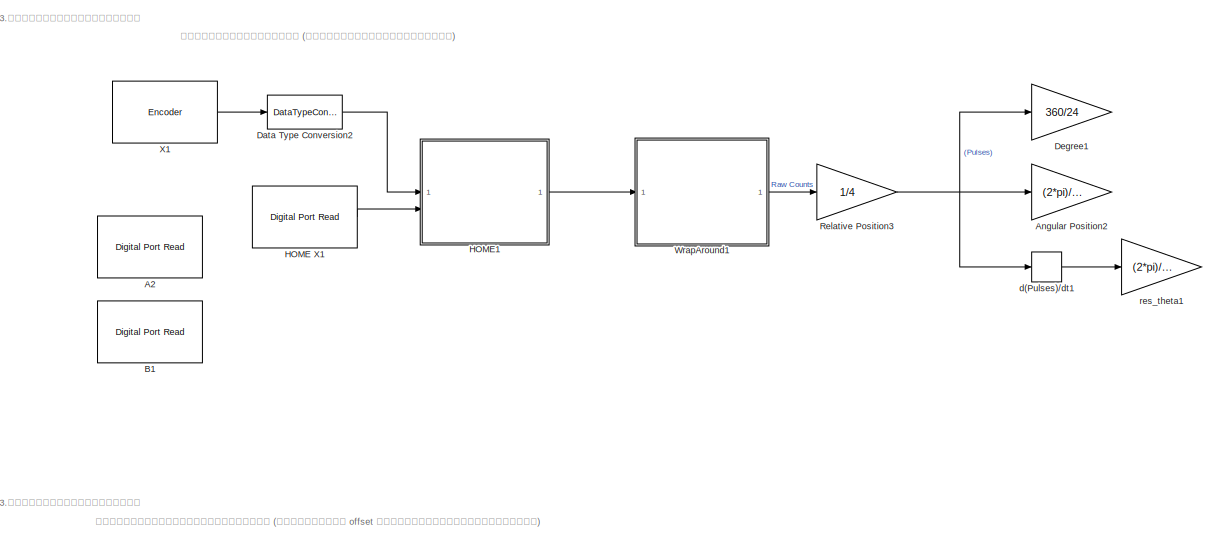
[diagram: root canvas - part 1/3, full width, top band]
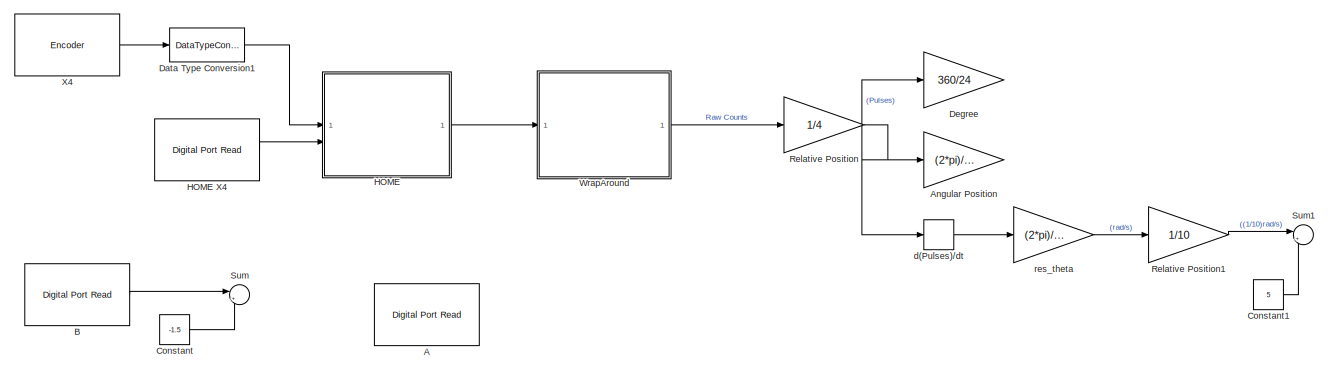
[diagram: root canvas - part 2/3, full width, middle band]
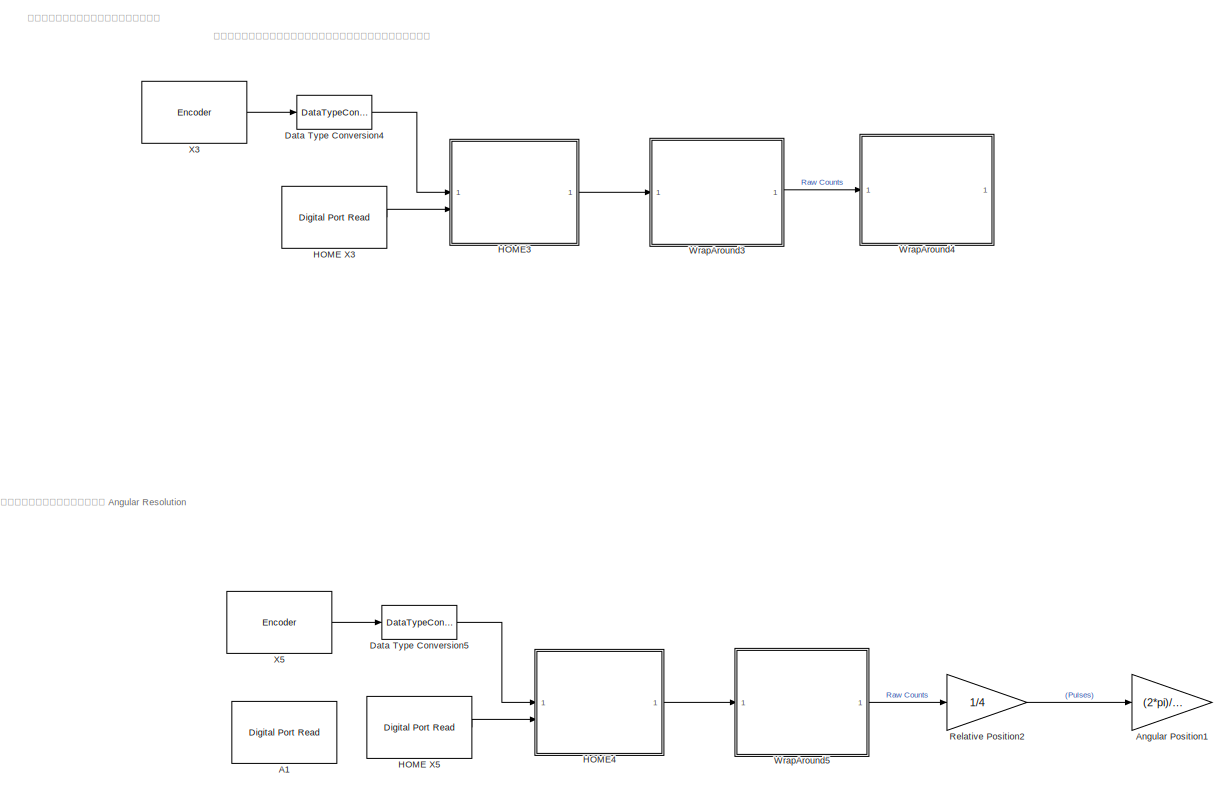
[diagram: root canvas - part 3/3, full width, bottom band]
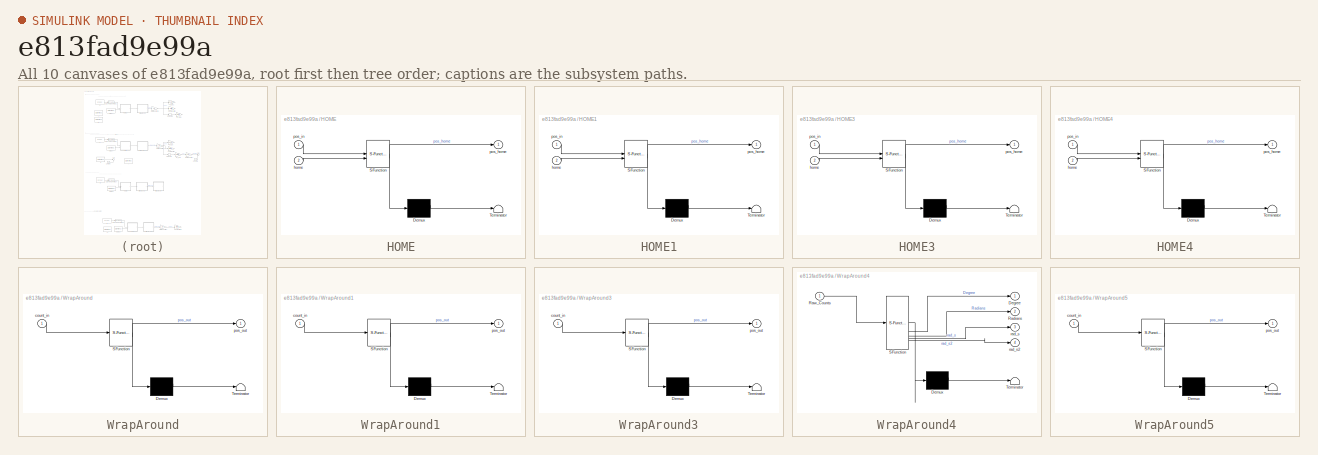
[diagram: thumbnail index - all 10 canvases of the model, root first then tree order]
MODEL slx_e813fad9e99a
KIND model
CONFIG AbsTol = auto
CONFIG EnableMultiTasking = on
CONFIG FixedStep = 0.1
CONFIG MaxStep = auto
CONFIG MinStep = auto
CONFIG RelTol = 1e-3
CONFIG SampleTimeConstraint = Unconstrained
CONFIG SolverName = FixedStepAuto
CONFIG StartTime = 0.0
CONFIG StopTime = inf
BLOCK [Reference] A  REF=stm32f4xxblockslib/Digital Port Read
  Commented = on
  LibrarySourceBlock = stm32g4xxblockslib/Digital Port Read
  SourceBlock = stm32f4xxblockslib/Digital Port Read
  SourceType = stm32cube.blocks.DigitalPortRead
BLOCK [Reference] A1  REF=stm32f4xxblockslib/Digital Port Read
  Commented = on
  LibrarySourceBlock = stm32g4xxblockslib/Digital Port Read
  SourceBlock = stm32f4xxblockslib/Digital Port Read
  SourceType = stm32cube.blocks.DigitalPortRead
BLOCK [Reference] A2  REF=stm32f4xxblockslib/Digital Port Read
  Commented = on
  LibrarySourceBlock = stm32g4xxblockslib/Digital Port Read
  SourceBlock = stm32f4xxblockslib/Digital Port Read
  SourceType = stm32cube.blocks.DigitalPortRead
BLOCK [Gain] Angular Position
  Commented = on
  Gain = (2*pi)/24
BLOCK [Gain] Angular Position1
  Commented = on
  Gain = (2*pi)/24
BLOCK [Gain] Angular Position2
  Commented = on
  Gain = (2*pi)/24
BLOCK [Reference] B  REF=stm32f4xxblockslib/Digital Port Read
  Commented = on
  LibrarySourceBlock = stm32g4xxblockslib/Digital Port Read
  SourceBlock = stm32f4xxblockslib/Digital Port Read
  SourceType = stm32cube.blocks.DigitalPortRead
BLOCK [Reference] B1  REF=stm32f4xxblockslib/Digital Port Read
  Commented = on
  LibrarySourceBlock = stm32g4xxblockslib/Digital Port Read
  SourceBlock = stm32f4xxblockslib/Digital Port Read
  SourceType = stm32cube.blocks.DigitalPortRead
BLOCK [Constant] Constant
  Commented = on
  Value = -1.5
BLOCK [Constant] Constant1
  Commented = on
  Value = 5
BLOCK [DataTypeConversion] Data Type Conversion1
  Commented = on
  OutDataTypeStr = double
  RndMeth = Floor
  SaturateOnIntegerOverflow = off
BLOCK [DataTypeConversion] Data Type Conversion2
  Commented = on
  OutDataTypeStr = double
  RndMeth = Floor
  SaturateOnIntegerOverflow = off
BLOCK [DataTypeConversion] Data Type Conversion4
  Commented = on
  OutDataTypeStr = double
  RndMeth = Floor
  SaturateOnIntegerOverflow = off
BLOCK [DataTypeConversion] Data Type Conversion5
  Commented = on
  OutDataTypeStr = double
  RndMeth = Floor
  SaturateOnIntegerOverflow = off
BLOCK [Gain] Degree
  Commented = on
  Gain = 360/24
BLOCK [Gain] Degree1
  Commented = on
  Gain = 360/24
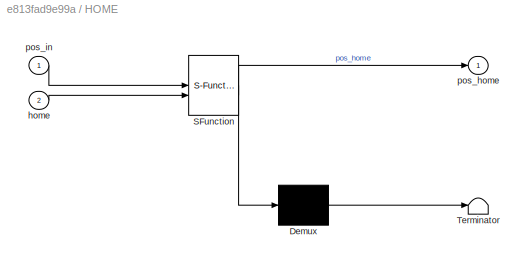
BLOCK [SubSystem] HOME
  Commented = on
  ErrorFcn = Stateflow.Translate.translate
  PermitHierarchicalResolution = ExplicitOnly
  SFBlockType = MATLAB Function
  TreatAsAtomicUnit = on
BLOCK [Reference] HOME X1  REF=stm32f4xxblockslib/Digital Port Read
  Commented = on
  LibrarySourceBlock = stm32g4xxblockslib/Digital Port Read
  SourceBlock = stm32f4xxblockslib/Digital Port Read
  SourceType = stm32cube.blocks.DigitalPortRead
BLOCK [Reference] HOME X3  REF=stm32f4xxblockslib/Digital Port Read
  Commented = on
  LibrarySourceBlock = stm32g4xxblockslib/Digital Port Read
  SourceBlock = stm32f4xxblockslib/Digital Port Read
  SourceType = stm32cube.blocks.DigitalPortRead
BLOCK [Reference] HOME X4  REF=stm32f4xxblockslib/Digital Port Read
  Commented = on
  LibrarySourceBlock = stm32g4xxblockslib/Digital Port Read
  SourceBlock = stm32f4xxblockslib/Digital Port Read
  SourceType = stm32cube.blocks.DigitalPortRead
BLOCK [Reference] HOME X5  REF=stm32f4xxblockslib/Digital Port Read
  Commented = on
  LibrarySourceBlock = stm32g4xxblockslib/Digital Port Read
  SourceBlock = stm32f4xxblockslib/Digital Port Read
  SourceType = stm32cube.blocks.DigitalPortRead
BLOCK [Demux] HOME/ Demux 
  Outputs = 1
BLOCK [S-Function] HOME/ SFunction 
  EnableBusSupport = off
  FunctionName = sf_sfun
  PortCounts = [2 2]
  SFcnIsStateOwnerBlock = off
  SFunctionDeploymentMode = off
  Tag = Stateflow S-Function 4
BLOCK [Terminator] HOME/ Terminator 
BLOCK [Inport] HOME/home
  Port = 2
BLOCK [Outport] HOME/pos_home
BLOCK [Inport] HOME/pos_in
BLOCK [SubSystem] HOME1
  Commented = on
  ErrorFcn = Stateflow.Translate.translate
  PermitHierarchicalResolution = ExplicitOnly
  SFBlockType = MATLAB Function
  TreatAsAtomicUnit = on
BLOCK [Demux] HOME1/ Demux 
  Outputs = 1
BLOCK [S-Function] HOME1/ SFunction 
  EnableBusSupport = off
  FunctionName = sf_sfun
  PortCounts = [2 2]
  SFcnIsStateOwnerBlock = off
  SFunctionDeploymentMode = off
  Tag = Stateflow S-Function 1
BLOCK [Terminator] HOME1/ Terminator 
BLOCK [Inport] HOME1/home
  Port = 2
BLOCK [Outport] HOME1/pos_home
BLOCK [Inport] HOME1/pos_in
BLOCK [SubSystem] HOME3
  Commented = on
  ErrorFcn = Stateflow.Translate.translate
  PermitHierarchicalResolution = ExplicitOnly
  SFBlockType = MATLAB Function
  TreatAsAtomicUnit = on
BLOCK [Demux] HOME3/ Demux 
  Outputs = 1
BLOCK [S-Function] HOME3/ SFunction 
  EnableBusSupport = off
  FunctionName = sf_sfun
  PortCounts = [2 2]
  SFcnIsStateOwnerBlock = off
  SFunctionDeploymentMode = off
  Tag = Stateflow S-Function 7
BLOCK [Terminator] HOME3/ Terminator 
BLOCK [Inport] HOME3/home
  Port = 2
BLOCK [Outport] HOME3/pos_home
BLOCK [Inport] HOME3/pos_in
BLOCK [SubSystem] HOME4
  Commented = on
  ErrorFcn = Stateflow.Translate.translate
  PermitHierarchicalResolution = ExplicitOnly
  SFBlockType = MATLAB Function
  TreatAsAtomicUnit = on
BLOCK [Demux] HOME4/ Demux 
  Outputs = 1
BLOCK [S-Function] HOME4/ SFunction 
  EnableBusSupport = off
  FunctionName = sf_sfun
  PortCounts = [2 2]
  SFcnIsStateOwnerBlock = off
  SFunctionDeploymentMode = off
  Tag = Stateflow S-Function 10
BLOCK [Terminator] HOME4/ Terminator 
BLOCK [Inport] HOME4/home
  Port = 2
BLOCK [Outport] HOME4/pos_home
BLOCK [Inport] HOME4/pos_in
BLOCK [Gain] Relative Position
  Commented = on
  Gain = 1/4
BLOCK [Gain] Relative Position1
  Commented = on
  Gain = 1/10
BLOCK [Gain] Relative Position2
  Commented = on
  Gain = 1/4
BLOCK [Gain] Relative Position3
  Commented = on
  Gain = 1/4
BLOCK [Sum] Sum
  Commented = on
  Inputs = |++
BLOCK [Sum] Sum1
  Commented = on
  Inputs = |++
BLOCK [SubSystem] WrapAround
  Commented = on
  ErrorFcn = Stateflow.Translate.translate
  PermitHierarchicalResolution = ExplicitOnly
  SFBlockType = MATLAB Function
  TreatAsAtomicUnit = on
BLOCK [Demux] WrapAround/ Demux 
  Outputs = 1
BLOCK [S-Function] WrapAround/ SFunction 
  EnableBusSupport = off
  FunctionName = sf_sfun
  PortCounts = [1 2]
  SFcnIsStateOwnerBlock = off
  SFunctionDeploymentMode = off
  Tag = Stateflow S-Function 2
BLOCK [Terminator] WrapAround/ Terminator 
BLOCK [Inport] WrapAround/count_in
BLOCK [Outport] WrapAround/pos_out
BLOCK [SubSystem] WrapAround1
  Commented = on
  ErrorFcn = Stateflow.Translate.translate
  PermitHierarchicalResolution = ExplicitOnly
  SFBlockType = MATLAB Function
  TreatAsAtomicUnit = on
BLOCK [Demux] WrapAround1/ Demux 
  Outputs = 1
BLOCK [S-Function] WrapAround1/ SFunction 
  EnableBusSupport = off
  FunctionName = sf_sfun
  PortCounts = [1 2]
  SFcnIsStateOwnerBlock = off
  SFunctionDeploymentMode = off
  Tag = Stateflow S-Function 3
BLOCK [Terminator] WrapAround1/ Terminator 
BLOCK [Inport] WrapAround1/count_in
BLOCK [Outport] WrapAround1/pos_out
BLOCK [SubSystem] WrapAround3
  Commented = on
  ErrorFcn = Stateflow.Translate.translate
  PermitHierarchicalResolution = ExplicitOnly
  SFBlockType = MATLAB Function
  TreatAsAtomicUnit = on
BLOCK [Demux] WrapAround3/ Demux 
  Outputs = 1
BLOCK [S-Function] WrapAround3/ SFunction 
  EnableBusSupport = off
  FunctionName = sf_sfun
  PortCounts = [1 2]
  SFcnIsStateOwnerBlock = off
  SFunctionDeploymentMode = off
  Tag = Stateflow S-Function 8
BLOCK [Terminator] WrapAround3/ Terminator 
BLOCK [Inport] WrapAround3/count_in
BLOCK [Outport] WrapAround3/pos_out
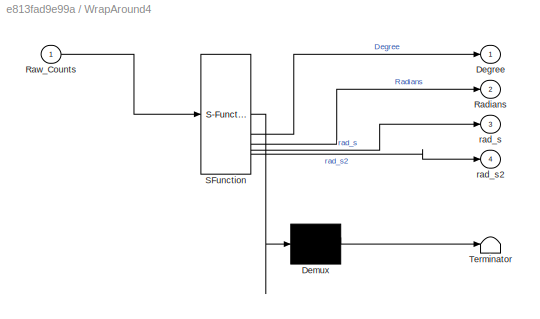
BLOCK [SubSystem] WrapAround4
  Commented = on
  ErrorFcn = Stateflow.Translate.translate
  PermitHierarchicalResolution = ExplicitOnly
  SFBlockType = MATLAB Function
  TreatAsAtomicUnit = on
BLOCK [Demux] WrapAround4/ Demux 
  Outputs = 1
BLOCK [S-Function] WrapAround4/ SFunction 
  EnableBusSupport = off
  FunctionName = sf_sfun
  PortCounts = [1 5]
  SFcnIsStateOwnerBlock = off
  SFunctionDeploymentMode = off
  Tag = Stateflow S-Function 9
BLOCK [Terminator] WrapAround4/ Terminator 
BLOCK [Outport] WrapAround4/Degree
BLOCK [Outport] WrapAround4/Radians
  Port = 2
BLOCK [Inport] WrapAround4/Raw_Counts
BLOCK [Outport] WrapAround4/rad_s
  Port = 3
BLOCK [Outport] WrapAround4/rad_s2
  Port = 4
BLOCK [SubSystem] WrapAround5
  Commented = on
  ErrorFcn = Stateflow.Translate.translate
  PermitHierarchicalResolution = ExplicitOnly
  SFBlockType = MATLAB Function
  TreatAsAtomicUnit = on
BLOCK [Demux] WrapAround5/ Demux 
  Outputs = 1
BLOCK [S-Function] WrapAround5/ SFunction 
  EnableBusSupport = off
  FunctionName = sf_sfun
  PortCounts = [1 2]
  SFcnIsStateOwnerBlock = off
  SFunctionDeploymentMode = off
  Tag = Stateflow S-Function 11
BLOCK [Terminator] WrapAround5/ Terminator 
BLOCK [Inport] WrapAround5/count_in
BLOCK [Outport] WrapAround5/pos_out
BLOCK [Reference] X1  REF=stm32g4xxblockslib/Encoder
  Commented = on
  SourceBlock = stm32g4xxblockslib/Encoder
  SourceType = stm32cube.blocks.EncoderBlockForG4
BLOCK [Reference] X3  REF=stm32g4xxblockslib/Encoder
  Commented = on
  SourceBlock = stm32g4xxblockslib/Encoder
  SourceType = stm32cube.blocks.EncoderBlockForG4
BLOCK [Reference] X4  REF=stm32g4xxblockslib/Encoder
  Commented = on
  SourceBlock = stm32g4xxblockslib/Encoder
  SourceType = stm32cube.blocks.EncoderBlockForG4
BLOCK [Reference] X5  REF=stm32g4xxblockslib/Encoder
  Commented = on
  SourceBlock = stm32g4xxblockslib/Encoder
  SourceType = stm32cube.blocks.EncoderBlockForG4
BLOCK [Derivative] d(Pulses)//dt
  Commented = on
BLOCK [Derivative] d(Pulses)//dt1
  Commented = on
BLOCK [Gain] res_theta
  Commented = on
  Gain = (2*pi)/24
BLOCK [Gain] res_theta1
  Commented = on
  Gain = (2*pi)/24
ANNOTATION (root): อยากลองเป็นโปรแกรมแล้วใช้ไม่ได้
ANNOTATION (root): โปรแกรมที่ถูกต้อง (ไม่ได้ใช้ในการเก็บค่า)
ANNOTATION (root): โปรแกรมที่ใช้ในการเก็บค่า (มีการเพิ่ม offset เพื่อง่ายในการเทียบกราฟ)
ANNOTATION (root): 3.การพัฒนาระบบอ่านค่า
ANNOTATION (root): การพัฒนาระบบอ่านค่า
ANNOTATION (root): พัฒนาระบบแสดงผล Angular Resolution
LINE B:1 -> Sum:1
LINE Constant1:1 -> Sum1:2
LINE Constant:1 -> Sum:2
LINE Data Type Conversion1:1 -> HOME:1
LINE Data Type Conversion2:1 -> HOME1:1
LINE Data Type Conversion4:1 -> HOME3:1
LINE Data Type Conversion5:1 -> HOME4:1
LINE HOME X1:1 -> HOME1:2
LINE HOME X3:1 -> HOME3:2
LINE HOME X4:1 -> HOME:2
LINE HOME X5:1 -> HOME4:2
LINE HOME1:1 -> WrapAround1:1
LINE HOME3:1 -> WrapAround3:1
LINE HOME4:1 -> WrapAround5:1
LINE HOME:1 -> WrapAround:1
LINE Relative Position1:1 -> Sum1:1
LINE Relative Position2:1 -> Angular Position1:1
NET Relative Position3:1 -> Angular Position2:1, Degree1:1, d(Pulses)//dt1:1
NET Relative Position:1 -> Angular Position:1, Degree:1, d(Pulses)//dt:1
LINE WrapAround1:1 -> Relative Position3:1
LINE WrapAround3:1 -> WrapAround4:1
LINE WrapAround5:1 -> Relative Position2:1
LINE WrapAround:1 -> Relative Position:1
LINE X1:1 -> Data Type Conversion2:1
LINE X3:1 -> Data Type Conversion4:1
LINE X4:1 -> Data Type Conversion1:1
LINE X5:1 -> Data Type Conversion5:1
LINE d(Pulses)//dt1:1 -> res_theta1:1
LINE d(Pulses)//dt:1 -> res_theta:1
LINE res_theta:1 -> Relative Position1:1
note: NET lines group one-source signal fan-out (src -> all destinations, sorted); 1:1 wires keep LINE
CHART HOME1 states=1 transitions=1
  STATE_LABEL 'eML_blk_kernel()'
  STATE_LABEL 'SCRIPT:\nfunction pos_home = Homing(pos_in, home)\n%#codegen\npersistent offset init\n\nif isempty(init)\n    offset = 0;\n    init = true;\nend\n    \nif home == 1\n    offset = pos_in; % จดจำค่าปัจจุบันเป็นจุดอ้างอิง\nend\n\npos_home = pos_in - offset; % หักออกให้ตำแหน่งปัจจุบันกลายเป็นศูนย์\nend'  <repeated x4 — deduplicated; at blocks: HOME1, HOME, HOME3, HOME4>
CHART WrapAround states=1 transitions=1
  STATE_LABEL 'eML_blk_kernel()'
  STATE_LABEL 'SCRIPT:\nfunction pos_out = WrapAround(count_in)\n%#codegen\n\n% --- ค่าคงที่ ---\nMAX_COUNT = 61439;   % จาก IOC Counter Period\nHALF_COUNT = MAX_COUNT / 2;\n\n% --- ตัวแปรคงอยู่ข้ามรอบ ---\npersistent old_count;\npersistent total_count;\n\nif isempty(old_count)\n    old_count = 0;\n    total_count = 0;\nend\n\n% --- คำนวณการเปลี่ยนแปลง ---\ndiff = count_in - old_count;\n\n% --- ตรวจจับการข้ามรอบ (Wrap-around) ---\ni...<+353ch>'  <repeated x4 — deduplicated; at blocks: WrapAround, WrapAround1, WrapAround3, WrapAround5>
CHART WrapAround1 states=1 transitions=1
  STATE_LABEL 'eML_blk_kernel()'
CHART HOME states=1 transitions=1
  STATE_LABEL 'eML_blk_kernel()'
CHART HOME3 states=1 transitions=1
  STATE_LABEL 'eML_blk_kernel()'
CHART WrapAround3 states=1 transitions=1
  STATE_LABEL 'eML_blk_kernel()'
CHART WrapAround4 states=1 transitions=1
  STATE_LABEL 'eML_blk_kernel()'
  STATE_LABEL 'SCRIPT:\nfunction [Degree, Radians, rad_s, rad_s2] = fun(Raw_Counts)\n\nx = 4;\nPulse = 24;\nTs = 0.01;  % กำหนด sampling time ของ encoder (หน่วยวินาที)\nrestheta = (2*pi)/Pulse;\nRelativ_Position = Raw_Counts / x;\n\nDegree  = Relativ_Position * (360 / Pulse);\nRadians = Relativ_Position * (2*pi / Pulse);\n\n% --- คำนวณ angular velocity ---\nrad_s_temp = [0; diff(Raw_Counts)] / Ts;  % หารด้วยเวลา\nrad_s  = res...<+121ch>'
CHART HOME4 states=1 transitions=1
  STATE_LABEL 'eML_blk_kernel()'
CHART WrapAround5 states=1 transitions=1
  STATE_LABEL 'eML_blk_kernel()'
CHART  states=0 transitions=0
CHART  states=0 transitions=0
CHART  states=0 transitions=0
CHART  states=0 transitions=0
CHART  states=0 transitions=0
CHART  states=0 transitions=0
CHART  states=0 transitions=0
CHART  states=0 transitions=0
CHART  states=0 transitions=0
